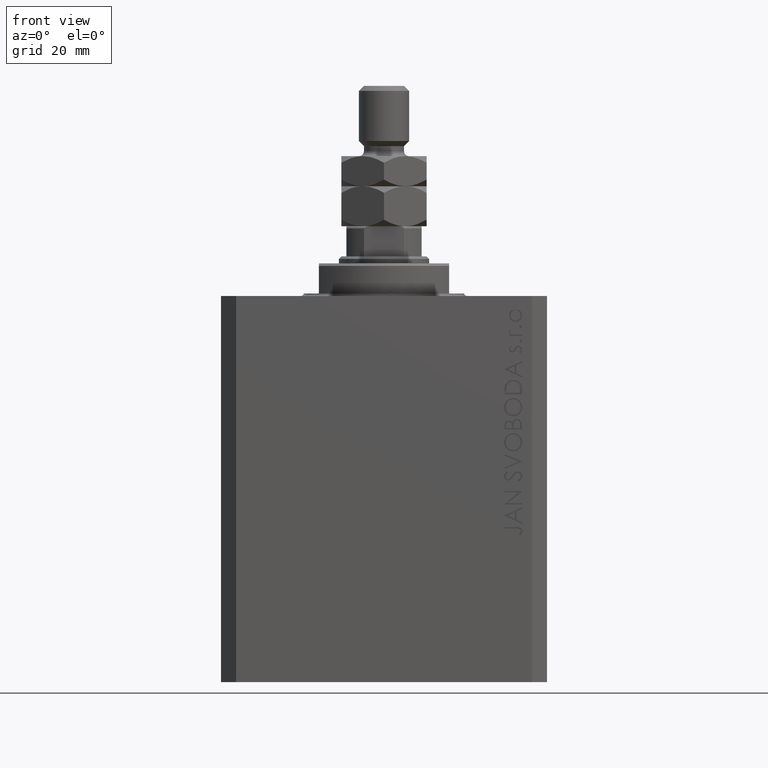
[diagram: clean part render]
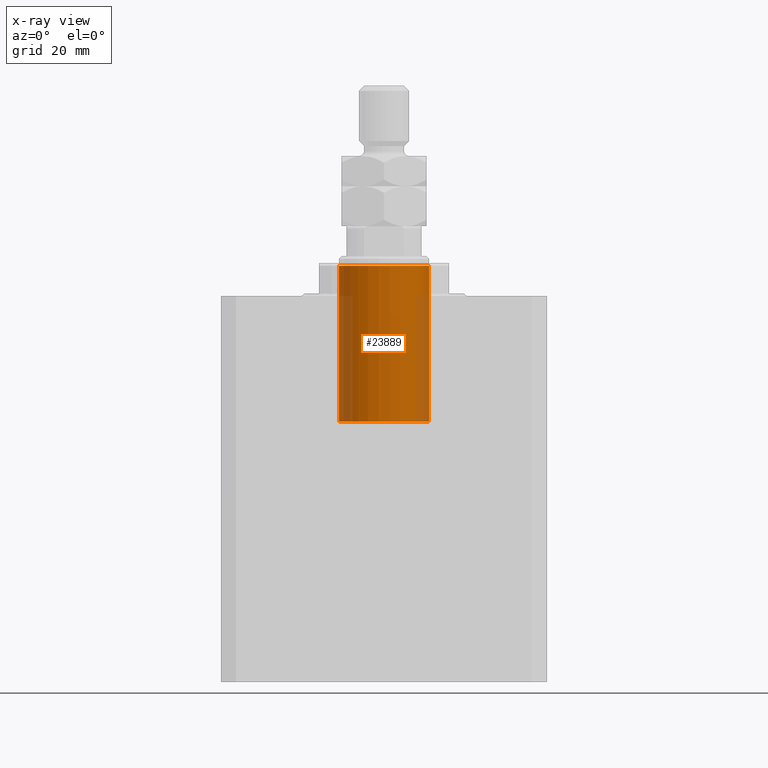
[diagram: x-ray — body ghosted, one internal face saturated and labeled with its STEP entity id]
A machine part, front view, then the same camera in x-ray: the body is ghosted and one INTERNAL B-rep face — a face not visible from any outside direction — is saturated and labeled: STEP entity #23889.
In plain terms, the highlighted cylindrical surface (partial cylindrical patch) has radius 9 mm, axis along (0, -0, 1).
Its self-contained STEP definition (entity closure, byte-faithful):
#1068 = EDGE_LOOP ( 'NONE', ( #35935, #27555, #48882, #11599 ) ) ;
#3404 = CIRCLE ( 'NONE', #27939, 9.000000000000000000 ) ;
#3905 = EDGE_CURVE ( 'NONE', #15665, #22418, #14098, .T. ) ;
#6917 = EDGE_CURVE ( 'NONE', #28081, #22418, #19258, .T. ) ;
#6922 = CARTESIAN_POINT ( 'NONE',  ( -9.000000000000000000, 0.000000000000000000, -6.000000000000001776 ) ) ;
#7132 = EDGE_CURVE ( 'NONE', #43508, #15665, #32610, .T. ) ;
#11599 = ORIENTED_EDGE ( 'NONE', *, *, #6917, .F. ) ;
#14098 = CIRCLE ( 'NONE', #29105, 9.000000000000000000 ) ;
#15665 = VERTEX_POINT ( 'NONE', #35493 ) ;
#16362 = DIRECTION ( 'NONE',  ( 0.000000000000000000, 0.000000000000000000, -1.000000000000000000 ) ) ;
#17946 = CARTESIAN_POINT ( 'NONE',  ( 0.000000000000000000, 0.000000000000000000, 25.10000000000000497 ) ) ;
#18741 = DIRECTION ( 'NONE',  ( -0.000000000000000000, -0.000000000000000000, -1.000000000000000000 ) ) ;
#19258 = LINE ( 'NONE', #26186, #43945 ) ;
#19566 = EDGE_CURVE ( 'NONE', #43508, #28081, #3404, .T. ) ;
#21796 = VECTOR ( 'NONE', #36573, 1000.000000000000000 ) ;
#22418 = VERTEX_POINT ( 'NONE', #6922 ) ;
#23889 = ADVANCED_FACE ( 'NONE', ( #47950 ), #44218, .F. ) ;
#26186 = CARTESIAN_POINT ( 'NONE',  ( -9.000000000000000000, 0.000000000000000000, 25.10000000000000497 ) ) ;
#27015 = CARTESIAN_POINT ( 'NONE',  ( 0.000000000000000000, 0.000000000000000000, -6.000000000000001776 ) ) ;
#27400 = CARTESIAN_POINT ( 'NONE',  ( 9.000000000000000000, 1.102182119232617714E-15, 25.10000000000000497 ) ) ;
#27555 = ORIENTED_EDGE ( 'NONE', *, *, #7132, .T. ) ;
#27939 = AXIS2_PLACEMENT_3D ( 'NONE', #36469, #31598, #28777 ) ;
#28081 = VERTEX_POINT ( 'NONE', #49013 ) ;
#28777 = DIRECTION ( 'NONE',  ( -1.000000000000000000, 0.000000000000000000, 0.000000000000000000 ) ) ;
#29101 = CARTESIAN_POINT ( 'NONE',  ( 9.000000000000000000, 1.102182119232617714E-15, 25.10000000000000497 ) ) ;
#29105 = AXIS2_PLACEMENT_3D ( 'NONE', #27015, #16362, #38434 ) ;
#30159 = AXIS2_PLACEMENT_3D ( 'NONE', #17946, #44709, #33559 ) ;
#31598 = DIRECTION ( 'NONE',  ( 0.000000000000000000, 0.000000000000000000, -1.000000000000000000 ) ) ;
#32610 = LINE ( 'NONE', #29101, #21796 ) ;
#33559 = DIRECTION ( 'NONE',  ( -1.000000000000000000, 0.000000000000000000, 0.000000000000000000 ) ) ;
#35493 = CARTESIAN_POINT ( 'NONE',  ( 9.000000000000000000, 1.102182119232617714E-15, -6.000000000000001776 ) ) ;
#35935 = ORIENTED_EDGE ( 'NONE', *, *, #19566, .F. ) ;
#36469 = CARTESIAN_POINT ( 'NONE',  ( 0.000000000000000000, 0.000000000000000000, 25.10000000000000497 ) ) ;
#36573 = DIRECTION ( 'NONE',  ( -0.000000000000000000, -0.000000000000000000, -1.000000000000000000 ) ) ;
#38434 = DIRECTION ( 'NONE',  ( -1.000000000000000000, 0.000000000000000000, 0.000000000000000000 ) ) ;
#43508 = VERTEX_POINT ( 'NONE', #27400 ) ;
#43945 = VECTOR ( 'NONE', #18741, 1000.000000000000000 ) ;
#44218 = CYLINDRICAL_SURFACE ( 'NONE', #30159, 9.000000000000000000 ) ;
#44709 = DIRECTION ( 'NONE',  ( -0.000000000000000000, -0.000000000000000000, -1.000000000000000000 ) ) ;
#47950 = FACE_OUTER_BOUND ( 'NONE', #1068, .T. ) ;
#48882 = ORIENTED_EDGE ( 'NONE', *, *, #3905, .T. ) ;
#49013 = CARTESIAN_POINT ( 'NONE',  ( -9.000000000000000000, 0.000000000000000000, 25.10000000000000497 ) ) ;